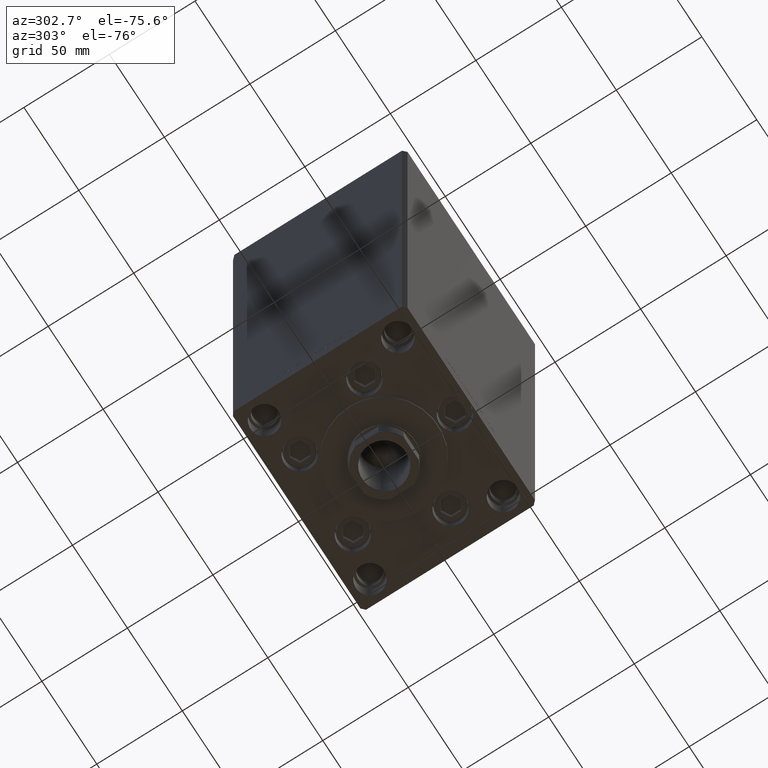
[diagram: clean part render]
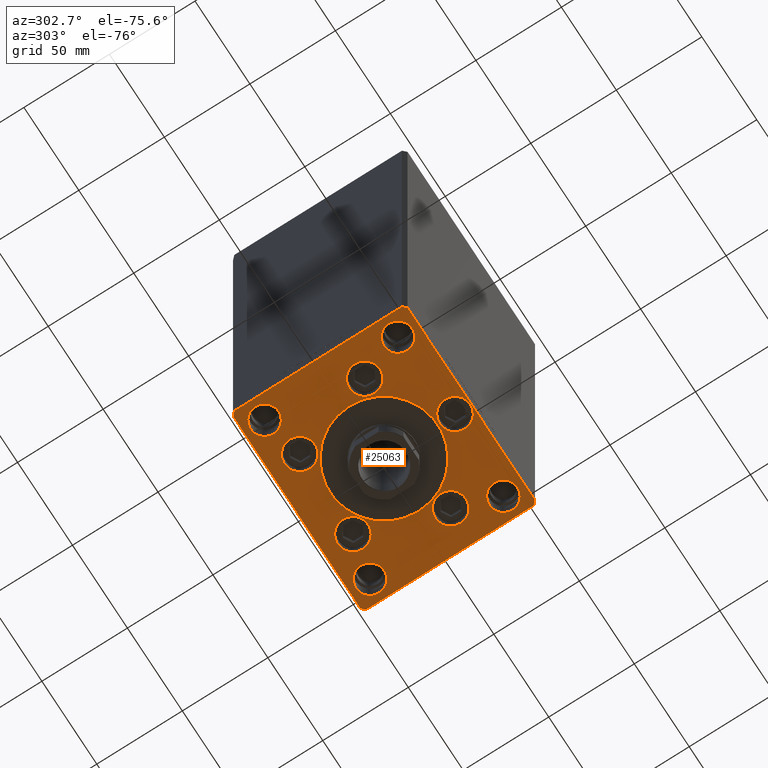
[diagram: same view with one face highlighted and labeled with its STEP entity id]
A machine part, auxiliary view. The second image highlights one B-rep face of the part: STEP entity #25063.
In plain terms, the highlighted planar face has unit normal (0, 0, -1).
Its self-contained STEP definition (entity closure, byte-faithful):
#311 = ORIENTED_EDGE ( 'NONE', *, *, #10470, .F. ) ;
#367 = EDGE_CURVE ( 'NONE', #31261, #7900, #29055, .T. ) ;
#710 = AXIS2_PLACEMENT_3D ( 'NONE', #4578, #23466, #31168 ) ;
#768 = CARTESIAN_POINT ( 'NONE',  ( -31.50000000000000000, -6.938893903907228378E-15, 0.000000000000000000 ) ) ;
#880 = ORIENTED_EDGE ( 'NONE', *, *, #367, .F. ) ;
#1090 = EDGE_CURVE ( 'NONE', #17115, #7779, #25875, .T. ) ;
#1612 = CARTESIAN_POINT ( 'NONE',  ( -58.00000000000000711, -51.00000000000002842, 0.000000000000000000 ) ) ;
#1781 = ORIENTED_EDGE ( 'NONE', *, *, #39388, .F. ) ;
#1976 = DIRECTION ( 'NONE',  ( 1.000000000000000000, 0.000000000000000000, 0.000000000000000000 ) ) ;
#2501 = DIRECTION ( 'NONE',  ( 1.000000000000000000, 0.000000000000000000, 0.000000000000000000 ) ) ;
#2506 = CARTESIAN_POINT ( 'NONE',  ( 24.19288941894913592, 33.71874999999998579, 0.000000000000000000 ) ) ;
#2719 = CIRCLE ( 'NONE', #6653, 8.249999999999992895 ) ;
#2939 = CIRCLE ( 'NONE', #44984, 9.000000000000000000 ) ;
#3207 = AXIS2_PLACEMENT_3D ( 'NONE', #25167, #29145, #6536 ) ;
#3415 = ORIENTED_EDGE ( 'NONE', *, *, #19988, .T. ) ;
#4038 = VERTEX_POINT ( 'NONE', #42396 ) ;
#4087 = ORIENTED_EDGE ( 'NONE', *, *, #14460, .T. ) ;
#4369 = DIRECTION ( 'NONE',  ( -0.000000000000000000, 0.000000000000000000, 1.000000000000000000 ) ) ;
#4461 = AXIS2_PLACEMENT_3D ( 'NONE', #20032, #46167, #42658 ) ;
#4576 = CARTESIAN_POINT ( 'NONE',  ( 31.50000000000000000, -3.081256486593065689E-15, 0.000000000000000000 ) ) ;
#4578 = CARTESIAN_POINT ( 'NONE',  ( -48.00000000000000000, -39.00000000000001421, 0.000000000000000000 ) ) ;
#4712 = CARTESIAN_POINT ( 'NONE',  ( -33.19288941894913592, 33.71874999999998579, 0.000000000000000000 ) ) ;
#4858 = EDGE_CURVE ( 'NONE', #6273, #9421, #39507, .T. ) ;
#4862 = FACE_BOUND ( 'NONE', #45162, .T. ) ;
#4980 = EDGE_CURVE ( 'NONE', #9421, #6273, #44276, .T. ) ;
#5270 = DIRECTION ( 'NONE',  ( 1.000000000000000000, 0.000000000000000000, 0.000000000000000000 ) ) ;
#5406 = ORIENTED_EDGE ( 'NONE', *, *, #40595, .T. ) ;
#5572 = ORIENTED_EDGE ( 'NONE', *, *, #34267, .F. ) ;
#5637 = DIRECTION ( 'NONE',  ( 1.000000000000000000, 0.000000000000000000, 0.000000000000000000 ) ) ;
#5653 = AXIS2_PLACEMENT_3D ( 'NONE', #48430, #24641, #32094 ) ;
#5975 = VERTEX_POINT ( 'NONE', #26456 ) ;
#6087 = VERTEX_POINT ( 'NONE', #4576 ) ;
#6157 = VERTEX_POINT ( 'NONE', #35876 ) ;
#6273 = VERTEX_POINT ( 'NONE', #42301 ) ;
#6368 = AXIS2_PLACEMENT_3D ( 'NONE', #19715, #46320, #2501 ) ;
#6434 = CIRCLE ( 'NONE', #5653, 8.249999999999992895 ) ;
#6536 = DIRECTION ( 'NONE',  ( 1.000000000000000000, 0.000000000000000000, 0.000000000000000000 ) ) ;
#6653 = AXIS2_PLACEMENT_3D ( 'NONE', #40164, #29230, #5637 ) ;
#6678 = VECTOR ( 'NONE', #48035, 1000.000000000000000 ) ;
#6707 = EDGE_CURVE ( 'NONE', #38102, #5975, #8796, .T. ) ;
#6946 = EDGE_LOOP ( 'NONE', ( #7085, #32899 ) ) ;
#6974 = CARTESIAN_POINT ( 'NONE',  ( 48.12657522565563539, -13.83333333333332860, 0.000000000000000000 ) ) ;
#7074 = DIRECTION ( 'NONE',  ( 0.000000000000000000, 0.000000000000000000, 1.000000000000000000 ) ) ;
#7085 = ORIENTED_EDGE ( 'NONE', *, *, #39290, .F. ) ;
#7311 = EDGE_CURVE ( 'NONE', #32475, #34062, #44381, .T. ) ;
#7419 = ORIENTED_EDGE ( 'NONE', *, *, #23375, .T. ) ;
#7565 = ORIENTED_EDGE ( 'NONE', *, *, #22313, .F. ) ;
#7663 = EDGE_CURVE ( 'NONE', #36537, #6157, #33237, .T. ) ;
#7779 = VERTEX_POINT ( 'NONE', #17717 ) ;
#7859 = FACE_BOUND ( 'NONE', #13701, .T. ) ;
#7900 = VERTEX_POINT ( 'NONE', #12644 ) ;
#8293 = LINE ( 'NONE', #19243, #15684 ) ;
#8336 = VERTEX_POINT ( 'NONE', #36691 ) ;
#8503 = CARTESIAN_POINT ( 'NONE',  ( -57.99999999999998579, 50.99999999999997868, 0.000000000000000000 ) ) ;
#8513 = VECTOR ( 'NONE', #19687, 1000.000000000000000 ) ;
#8601 = EDGE_CURVE ( 'NONE', #29623, #42290, #24544, .T. ) ;
#8739 = DIRECTION ( 'NONE',  ( 0.000000000000000000, 0.000000000000000000, 1.000000000000000000 ) ) ;
#8789 = CARTESIAN_POINT ( 'NONE',  ( -30.12657522565563539, -13.83333333333332860, 0.000000000000000000 ) ) ;
#8796 = LINE ( 'NONE', #27930, #30077 ) ;
#9079 = DIRECTION ( 'NONE',  ( 1.000000000000000000, 0.000000000000000000, 0.000000000000000000 ) ) ;
#9181 = EDGE_CURVE ( 'NONE', #42290, #29623, #34789, .T. ) ;
#9421 = VERTEX_POINT ( 'NONE', #28101 ) ;
#9700 = DIRECTION ( 'NONE',  ( 1.000000000000000000, 0.000000000000000000, 0.000000000000000000 ) ) ;
#9822 = CARTESIAN_POINT ( 'NONE',  ( -57.99999999999998579, 50.99999999999997868, 0.000000000000000000 ) ) ;
#10043 = VERTEX_POINT ( 'NONE', #34276 ) ;
#10470 = EDGE_CURVE ( 'NONE', #6157, #36537, #36437, .T. ) ;
#10933 = AXIS2_PLACEMENT_3D ( 'NONE', #35930, #7074, #40871 ) ;
#11204 = AXIS2_PLACEMENT_3D ( 'NONE', #42021, #40237, #1976 ) ;
#11570 = CARTESIAN_POINT ( 'NONE',  ( 56.24999999999999289, -39.00000000000001421, 0.000000000000000000 ) ) ;
#11640 = AXIS2_PLACEMENT_3D ( 'NONE', #46604, #4369, #41652 ) ;
#11957 = CARTESIAN_POINT ( 'NONE',  ( -48.00000000000000000, -39.00000000000001421, 0.000000000000000000 ) ) ;
#12063 = FACE_BOUND ( 'NONE', #16532, .T. ) ;
#12339 = CIRCLE ( 'NONE', #32967, 9.000000000000001776 ) ;
#12564 = CARTESIAN_POINT ( 'NONE',  ( 0.000000000000000000, -41.50000000000000000, 0.000000000000000000 ) ) ;
#12586 = CIRCLE ( 'NONE', #40378, 31.50000000000000000 ) ;
#12592 = DIRECTION ( 'NONE',  ( 0.000000000000000000, 1.000000000000000000, 0.000000000000000000 ) ) ;
#12616 = ORIENTED_EDGE ( 'NONE', *, *, #6707, .T. ) ;
#12644 = CARTESIAN_POINT ( 'NONE',  ( 39.75000000000000711, -39.00000000000001421, 0.000000000000000000 ) ) ;
#12841 = CARTESIAN_POINT ( 'NONE',  ( -60.00000000000000000, -49.00000000000004263, 0.000000000000000000 ) ) ;
#13301 = ORIENTED_EDGE ( 'NONE', *, *, #15683, .F. ) ;
#13355 = AXIS2_PLACEMENT_3D ( 'NONE', #30954, #26719, #42142 ) ;
#13626 = DIRECTION ( 'NONE',  ( 1.000000000000000000, 0.000000000000000000, 0.000000000000000000 ) ) ;
#13701 = EDGE_LOOP ( 'NONE', ( #1781, #36669 ) ) ;
#14071 = AXIS2_PLACEMENT_3D ( 'NONE', #34449, #34683, #14808 ) ;
#14171 = AXIS2_PLACEMENT_3D ( 'NONE', #37222, #17355, #25538 ) ;
#14444 = CARTESIAN_POINT ( 'NONE',  ( 33.19288941894913592, 33.71874999999998579, 0.000000000000000000 ) ) ;
#14460 = EDGE_CURVE ( 'NONE', #44145, #10043, #46912, .T. ) ;
#14808 = DIRECTION ( 'NONE',  ( 1.000000000000000000, 0.000000000000000000, 0.000000000000000000 ) ) ;
#15683 = EDGE_CURVE ( 'NONE', #7900, #31261, #2719, .T. ) ;
#15684 = VECTOR ( 'NONE', #23460, 1000.000000000000000 ) ;
#15868 = CIRCLE ( 'NONE', #6368, 9.000000000000001776 ) ;
#15942 = EDGE_LOOP ( 'NONE', ( #5572, #44220 ) ) ;
#16111 = ORIENTED_EDGE ( 'NONE', *, *, #4858, .F. ) ;
#16234 = DIRECTION ( 'NONE',  ( 1.000000000000000000, 0.000000000000000000, 0.000000000000000000 ) ) ;
#16271 = FACE_BOUND ( 'NONE', #19447, .T. ) ;
#16441 = LINE ( 'NONE', #8503, #8513 ) ;
#16532 = EDGE_LOOP ( 'NONE', ( #44605, #35579 ) ) ;
#16743 = DIRECTION ( 'NONE',  ( 0.7071067811865474617, 0.7071067811865474617, 0.000000000000000000 ) ) ;
#17115 = VERTEX_POINT ( 'NONE', #14444 ) ;
#17233 = DIRECTION ( 'NONE',  ( 0.000000000000000000, 0.000000000000000000, 1.000000000000000000 ) ) ;
#17355 = DIRECTION ( 'NONE',  ( 0.000000000000000000, 0.000000000000000000, 1.000000000000000000 ) ) ;
#17717 = CARTESIAN_POINT ( 'NONE',  ( 15.19288941894913236, 33.71874999999998579, 0.000000000000000000 ) ) ;
#17969 = VERTEX_POINT ( 'NONE', #18364 ) ;
#18364 = CARTESIAN_POINT ( 'NONE',  ( 58.00000000000000000, 51.00000000000000711, 0.000000000000000000 ) ) ;
#18679 = VERTEX_POINT ( 'NONE', #45838 ) ;
#19114 = ORIENTED_EDGE ( 'NONE', *, *, #1090, .F. ) ;
#19243 = CARTESIAN_POINT ( 'NONE',  ( -60.00000000000000000, 49.00000000000000000, 0.000000000000000000 ) ) ;
#19447 = EDGE_LOOP ( 'NONE', ( #45704, #20809 ) ) ;
#19668 = AXIS2_PLACEMENT_3D ( 'NONE', #12564, #43138, #9079 ) ;
#19687 = DIRECTION ( 'NONE',  ( -0.7071067811865536790, -0.7071067811865414665, 0.000000000000000000 ) ) ;
#19715 = CARTESIAN_POINT ( 'NONE',  ( -39.12657522565563539, -13.83333333333332860, 0.000000000000000000 ) ) ;
#19920 = DIRECTION ( 'NONE',  ( 1.000000000000000000, 0.000000000000000000, 0.000000000000000000 ) ) ;
#19988 = EDGE_CURVE ( 'NONE', #17969, #44480, #32874, .T. ) ;
#20003 = FACE_BOUND ( 'NONE', #41508, .T. ) ;
#20032 = CARTESIAN_POINT ( 'NONE',  ( 24.19288941894913592, 33.71874999999998579, 0.000000000000000000 ) ) ;
#20153 = DIRECTION ( 'NONE',  ( 1.000000000000000000, 0.000000000000000000, 0.000000000000000000 ) ) ;
#20415 = DIRECTION ( 'NONE',  ( 0.000000000000000000, 0.000000000000000000, 1.000000000000000000 ) ) ;
#20809 = ORIENTED_EDGE ( 'NONE', *, *, #9181, .F. ) ;
#21536 = VECTOR ( 'NONE', #35651, 1000.000000000000000 ) ;
#21576 = CARTESIAN_POINT ( 'NONE',  ( -24.19288941894913592, 33.71874999999998579, 0.000000000000000000 ) ) ;
#22313 = EDGE_CURVE ( 'NONE', #7779, #17115, #12339, .T. ) ;
#22639 = CARTESIAN_POINT ( 'NONE',  ( 60.00000000000001421, 49.00000000000002842, 0.000000000000000000 ) ) ;
#22798 = ORIENTED_EDGE ( 'NONE', *, *, #31682, .T. ) ;
#23156 = CARTESIAN_POINT ( 'NONE',  ( -39.75000000000000711, -39.00000000000001421, 0.000000000000000000 ) ) ;
#23375 = EDGE_CURVE ( 'NONE', #5975, #18679, #31482, .T. ) ;
#23460 = DIRECTION ( 'NONE',  ( 0.000000000000000000, -1.000000000000000000, 0.000000000000000000 ) ) ;
#23466 = DIRECTION ( 'NONE',  ( 0.000000000000000000, 0.000000000000000000, 1.000000000000000000 ) ) ;
#23499 = FACE_OUTER_BOUND ( 'NONE', #40384, .T. ) ;
#23742 = FACE_BOUND ( 'NONE', #6946, .T. ) ;
#24477 = VECTOR ( 'NONE', #37059, 1000.000000000000000 ) ;
#24544 = CIRCLE ( 'NONE', #37246, 9.000000000000001776 ) ;
#24627 = CIRCLE ( 'NONE', #3207, 8.249999999999992895 ) ;
#24641 = DIRECTION ( 'NONE',  ( 0.000000000000000000, 0.000000000000000000, 1.000000000000000000 ) ) ;
#24689 = CIRCLE ( 'NONE', #31831, 9.000000000000000000 ) ;
#24793 = CARTESIAN_POINT ( 'NONE',  ( 56.24999999999999289, 39.00000000000000000, 0.000000000000000000 ) ) ;
#25063 = ADVANCED_FACE ( 'NONE', ( #27462, #23742, #4862, #16271, #38413, #12063, #7859, #20003, #34211, #30472, #23499 ), #35170, .T. ) ;
#25167 = CARTESIAN_POINT ( 'NONE',  ( -48.00000000000000000, 39.00000000000000711, 0.000000000000000000 ) ) ;
#25538 = DIRECTION ( 'NONE',  ( 1.000000000000000000, 0.000000000000000000, 0.000000000000000000 ) ) ;
#25625 = LINE ( 'NONE', #22639, #24477 ) ;
#25875 = CIRCLE ( 'NONE', #4461, 9.000000000000001776 ) ;
#26456 = CARTESIAN_POINT ( 'NONE',  ( 60.00000000000001421, -48.99999999999992895, 0.000000000000000000 ) ) ;
#26673 = CARTESIAN_POINT ( 'NONE',  ( 30.12657522565563539, -13.83333333333332682, 0.000000000000000000 ) ) ;
#26719 = DIRECTION ( 'NONE',  ( 0.000000000000000000, 0.000000000000000000, 1.000000000000000000 ) ) ;
#27462 = FACE_BOUND ( 'NONE', #15942, .T. ) ;
#27629 = EDGE_CURVE ( 'NONE', #44480, #4038, #16441, .T. ) ;
#27724 = ORIENTED_EDGE ( 'NONE', *, *, #38483, .F. ) ;
#27930 = CARTESIAN_POINT ( 'NONE',  ( 58.00000000000001421, -50.99999999999992184, 0.000000000000000000 ) ) ;
#28101 = CARTESIAN_POINT ( 'NONE',  ( -9.000000000000000000, -41.50000000000000000, 0.000000000000000000 ) ) ;
#28113 = VERTEX_POINT ( 'NONE', #33951 ) ;
#29055 = CIRCLE ( 'NONE', #33840, 8.249999999999992895 ) ;
#29071 = VECTOR ( 'NONE', #12592, 1000.000000000000000 ) ;
#29145 = DIRECTION ( 'NONE',  ( 0.000000000000000000, 0.000000000000000000, 1.000000000000000000 ) ) ;
#29230 = DIRECTION ( 'NONE',  ( 0.000000000000000000, 0.000000000000000000, 1.000000000000000000 ) ) ;
#29457 = VERTEX_POINT ( 'NONE', #31363 ) ;
#29521 = DIRECTION ( 'NONE',  ( 0.000000000000000000, 0.000000000000000000, 1.000000000000000000 ) ) ;
#29623 = VERTEX_POINT ( 'NONE', #6974 ) ;
#29625 = CARTESIAN_POINT ( 'NONE',  ( 58.00000000000000000, 51.00000000000000711, 0.000000000000000000 ) ) ;
#30077 = VECTOR ( 'NONE', #16743, 1000.000000000000114 ) ;
#30098 = EDGE_LOOP ( 'NONE', ( #880, #13301 ) ) ;
#30472 = FACE_BOUND ( 'NONE', #30098, .T. ) ;
#30503 = EDGE_LOOP ( 'NONE', ( #34451, #311 ) ) ;
#30665 = VERTEX_POINT ( 'NONE', #768 ) ;
#30954 = CARTESIAN_POINT ( 'NONE',  ( 39.12657522565563539, -13.83333333333332860, 0.000000000000000000 ) ) ;
#31095 = DIRECTION ( 'NONE',  ( 0.000000000000000000, 0.000000000000000000, 1.000000000000000000 ) ) ;
#31168 = DIRECTION ( 'NONE',  ( 1.000000000000000000, 0.000000000000000000, 0.000000000000000000 ) ) ;
#31226 = EDGE_CURVE ( 'NONE', #28113, #42765, #44288, .T. ) ;
#31261 = VERTEX_POINT ( 'NONE', #11570 ) ;
#31350 = DIRECTION ( 'NONE',  ( 0.000000000000000000, 0.000000000000000000, 1.000000000000000000 ) ) ;
#31363 = CARTESIAN_POINT ( 'NONE',  ( -15.19288941894913592, 33.71874999999998579, 0.000000000000000000 ) ) ;
#31482 = LINE ( 'NONE', #46652, #29071 ) ;
#31682 = EDGE_CURVE ( 'NONE', #4038, #44145, #8293, .T. ) ;
#31831 = AXIS2_PLACEMENT_3D ( 'NONE', #39062, #8739, #20153 ) ;
#32031 = ORIENTED_EDGE ( 'NONE', *, *, #46594, .F. ) ;
#32094 = DIRECTION ( 'NONE',  ( 1.000000000000000000, 0.000000000000000000, 0.000000000000000000 ) ) ;
#32475 = VERTEX_POINT ( 'NONE', #8789 ) ;
#32613 = CARTESIAN_POINT ( 'NONE',  ( 0.000000000000000000, -6.938893903907228378E-15, 0.000000000000000000 ) ) ;
#32874 = LINE ( 'NONE', #29625, #6678 ) ;
#32899 = ORIENTED_EDGE ( 'NONE', *, *, #45437, .F. ) ;
#32967 = AXIS2_PLACEMENT_3D ( 'NONE', #2506, #36555, #9700 ) ;
#33237 = CIRCLE ( 'NONE', #710, 8.249999999999992895 ) ;
#33694 = DIRECTION ( 'NONE',  ( 0.7071067811865474617, -0.7071067811865474617, 0.000000000000000000 ) ) ;
#33840 = AXIS2_PLACEMENT_3D ( 'NONE', #39104, #42583, #16234 ) ;
#33847 = ORIENTED_EDGE ( 'NONE', *, *, #27629, .T. ) ;
#33951 = CARTESIAN_POINT ( 'NONE',  ( 39.75000000000000711, 39.00000000000000000, 0.000000000000000000 ) ) ;
#34062 = VERTEX_POINT ( 'NONE', #37858 ) ;
#34211 = FACE_BOUND ( 'NONE', #30503, .T. ) ;
#34267 = EDGE_CURVE ( 'NONE', #30665, #6087, #12586, .T. ) ;
#34276 = CARTESIAN_POINT ( 'NONE',  ( -58.00000000000000711, -51.00000000000002842, 0.000000000000000000 ) ) ;
#34429 = EDGE_CURVE ( 'NONE', #18679, #17969, #25625, .T. ) ;
#34449 = CARTESIAN_POINT ( 'NONE',  ( 48.00000000000000000, 39.00000000000000000, 0.000000000000000000 ) ) ;
#34451 = ORIENTED_EDGE ( 'NONE', *, *, #7663, .F. ) ;
#34683 = DIRECTION ( 'NONE',  ( 0.000000000000000000, 0.000000000000000000, 1.000000000000000000 ) ) ;
#34729 = AXIS2_PLACEMENT_3D ( 'NONE', #43526, #31350, #19920 ) ;
#34789 = CIRCLE ( 'NONE', #13355, 9.000000000000001776 ) ;
#34833 = AXIS2_PLACEMENT_3D ( 'NONE', #11957, #31095, #42281 ) ;
#35170 = PLANE ( 'NONE',  #11640 ) ;
#35230 = ORIENTED_EDGE ( 'NONE', *, *, #4980, .F. ) ;
#35579 = ORIENTED_EDGE ( 'NONE', *, *, #37450, .F. ) ;
#35651 = DIRECTION ( 'NONE',  ( 1.000000000000000000, 9.570888143320313916E-16, 0.000000000000000000 ) ) ;
#35876 = CARTESIAN_POINT ( 'NONE',  ( -56.24999999999999289, -39.00000000000001421, 0.000000000000000000 ) ) ;
#35928 = CARTESIAN_POINT ( 'NONE',  ( 58.00000000000001421, -50.99999999999992184, 0.000000000000000000 ) ) ;
#35930 = CARTESIAN_POINT ( 'NONE',  ( 0.000000000000000000, -41.50000000000000000, 0.000000000000000000 ) ) ;
#36437 = CIRCLE ( 'NONE', #34833, 8.249999999999992895 ) ;
#36537 = VERTEX_POINT ( 'NONE', #23156 ) ;
#36546 = VECTOR ( 'NONE', #33694, 1000.000000000000114 ) ;
#36555 = DIRECTION ( 'NONE',  ( 0.000000000000000000, 0.000000000000000000, 1.000000000000000000 ) ) ;
#36669 = ORIENTED_EDGE ( 'NONE', *, *, #31226, .F. ) ;
#36691 = CARTESIAN_POINT ( 'NONE',  ( -39.75000000000000711, 39.00000000000000711, 0.000000000000000000 ) ) ;
#37059 = DIRECTION ( 'NONE',  ( -0.7071067811865536790, 0.7071067811865414665, 0.000000000000000000 ) ) ;
#37213 = EDGE_LOOP ( 'NONE', ( #16111, #35230 ) ) ;
#37222 = CARTESIAN_POINT ( 'NONE',  ( -39.12657522565563539, -13.83333333333332860, 0.000000000000000000 ) ) ;
#37246 = AXIS2_PLACEMENT_3D ( 'NONE', #40097, #17233, #43593 ) ;
#37450 = EDGE_CURVE ( 'NONE', #34062, #32475, #15868, .T. ) ;
#37858 = CARTESIAN_POINT ( 'NONE',  ( -48.12657522565563539, -13.83333333333332682, 0.000000000000000000 ) ) ;
#38102 = VERTEX_POINT ( 'NONE', #35928 ) ;
#38282 = CARTESIAN_POINT ( 'NONE',  ( -56.24999999999999289, 39.00000000000000711, 0.000000000000000000 ) ) ;
#38413 = FACE_BOUND ( 'NONE', #37213, .T. ) ;
#38483 = EDGE_CURVE ( 'NONE', #47734, #8336, #24627, .T. ) ;
#38992 = CIRCLE ( 'NONE', #11204, 31.50000000000000000 ) ;
#39062 = CARTESIAN_POINT ( 'NONE',  ( -24.19288941894913592, 33.71874999999998579, 0.000000000000000000 ) ) ;
#39104 = CARTESIAN_POINT ( 'NONE',  ( 48.00000000000000000, -39.00000000000001421, 0.000000000000000000 ) ) ;
#39290 = EDGE_CURVE ( 'NONE', #29457, #45363, #24689, .T. ) ;
#39388 = EDGE_CURVE ( 'NONE', #42765, #28113, #6434, .T. ) ;
#39507 = CIRCLE ( 'NONE', #19668, 9.000000000000000000 ) ;
#39622 = LINE ( 'NONE', #1612, #21536 ) ;
#40097 = CARTESIAN_POINT ( 'NONE',  ( 39.12657522565563539, -13.83333333333332860, 0.000000000000000000 ) ) ;
#40164 = CARTESIAN_POINT ( 'NONE',  ( 48.00000000000000000, -39.00000000000001421, 0.000000000000000000 ) ) ;
#40237 = DIRECTION ( 'NONE',  ( 0.000000000000000000, 0.000000000000000000, 1.000000000000000000 ) ) ;
#40355 = EDGE_CURVE ( 'NONE', #6087, #30665, #38992, .T. ) ;
#40378 = AXIS2_PLACEMENT_3D ( 'NONE', #32613, #20415, #5270 ) ;
#40384 = EDGE_LOOP ( 'NONE', ( #4087, #5406, #12616, #7419, #42214, #3415, #33847, #22798 ) ) ;
#40595 = EDGE_CURVE ( 'NONE', #10043, #38102, #39622, .T. ) ;
#40871 = DIRECTION ( 'NONE',  ( 1.000000000000000000, 0.000000000000000000, 0.000000000000000000 ) ) ;
#41508 = EDGE_LOOP ( 'NONE', ( #32031, #27724 ) ) ;
#41652 = DIRECTION ( 'NONE',  ( 1.000000000000000000, 0.000000000000000000, 0.000000000000000000 ) ) ;
#41798 = CARTESIAN_POINT ( 'NONE',  ( -60.00000000000000000, -49.00000000000004263, 0.000000000000000000 ) ) ;
#41859 = CIRCLE ( 'NONE', #34729, 8.249999999999992895 ) ;
#42021 = CARTESIAN_POINT ( 'NONE',  ( 0.000000000000000000, -6.938893903907228378E-15, 0.000000000000000000 ) ) ;
#42142 = DIRECTION ( 'NONE',  ( 1.000000000000000000, 0.000000000000000000, 0.000000000000000000 ) ) ;
#42214 = ORIENTED_EDGE ( 'NONE', *, *, #34429, .T. ) ;
#42281 = DIRECTION ( 'NONE',  ( 1.000000000000000000, 0.000000000000000000, 0.000000000000000000 ) ) ;
#42290 = VERTEX_POINT ( 'NONE', #26673 ) ;
#42301 = CARTESIAN_POINT ( 'NONE',  ( 9.000000000000000000, -41.50000000000000000, 0.000000000000000000 ) ) ;
#42396 = CARTESIAN_POINT ( 'NONE',  ( -60.00000000000000000, 49.00000000000000000, 0.000000000000000000 ) ) ;
#42583 = DIRECTION ( 'NONE',  ( 0.000000000000000000, 0.000000000000000000, 1.000000000000000000 ) ) ;
#42658 = DIRECTION ( 'NONE',  ( 1.000000000000000000, 0.000000000000000000, 0.000000000000000000 ) ) ;
#42765 = VERTEX_POINT ( 'NONE', #24793 ) ;
#43138 = DIRECTION ( 'NONE',  ( 0.000000000000000000, 0.000000000000000000, 1.000000000000000000 ) ) ;
#43526 = CARTESIAN_POINT ( 'NONE',  ( -48.00000000000000000, 39.00000000000000711, 0.000000000000000000 ) ) ;
#43593 = DIRECTION ( 'NONE',  ( 1.000000000000000000, 0.000000000000000000, 0.000000000000000000 ) ) ;
#44145 = VERTEX_POINT ( 'NONE', #41798 ) ;
#44220 = ORIENTED_EDGE ( 'NONE', *, *, #40355, .F. ) ;
#44276 = CIRCLE ( 'NONE', #10933, 9.000000000000000000 ) ;
#44288 = CIRCLE ( 'NONE', #14071, 8.249999999999992895 ) ;
#44381 = CIRCLE ( 'NONE', #14171, 9.000000000000001776 ) ;
#44480 = VERTEX_POINT ( 'NONE', #9822 ) ;
#44605 = ORIENTED_EDGE ( 'NONE', *, *, #7311, .F. ) ;
#44984 = AXIS2_PLACEMENT_3D ( 'NONE', #21576, #29521, #13626 ) ;
#45162 = EDGE_LOOP ( 'NONE', ( #19114, #7565 ) ) ;
#45363 = VERTEX_POINT ( 'NONE', #4712 ) ;
#45437 = EDGE_CURVE ( 'NONE', #45363, #29457, #2939, .T. ) ;
#45704 = ORIENTED_EDGE ( 'NONE', *, *, #8601, .F. ) ;
#45838 = CARTESIAN_POINT ( 'NONE',  ( 60.00000000000001421, 49.00000000000002842, 0.000000000000000000 ) ) ;
#46167 = DIRECTION ( 'NONE',  ( 0.000000000000000000, 0.000000000000000000, 1.000000000000000000 ) ) ;
#46320 = DIRECTION ( 'NONE',  ( 0.000000000000000000, 0.000000000000000000, 1.000000000000000000 ) ) ;
#46594 = EDGE_CURVE ( 'NONE', #8336, #47734, #41859, .T. ) ;
#46604 = CARTESIAN_POINT ( 'NONE',  ( 0.000000000000000000, 0.000000000000000000, 0.000000000000000000 ) ) ;
#46652 = CARTESIAN_POINT ( 'NONE',  ( 60.00000000000001421, -48.99999999999992895, 0.000000000000000000 ) ) ;
#46912 = LINE ( 'NONE', #12841, #36546 ) ;
#47734 = VERTEX_POINT ( 'NONE', #38282 ) ;
#48035 = DIRECTION ( 'NONE',  ( -1.000000000000000000, -2.392722035830078972E-16, 0.000000000000000000 ) ) ;
#48430 = CARTESIAN_POINT ( 'NONE',  ( 48.00000000000000000, 39.00000000000000000, 0.000000000000000000 ) ) ;